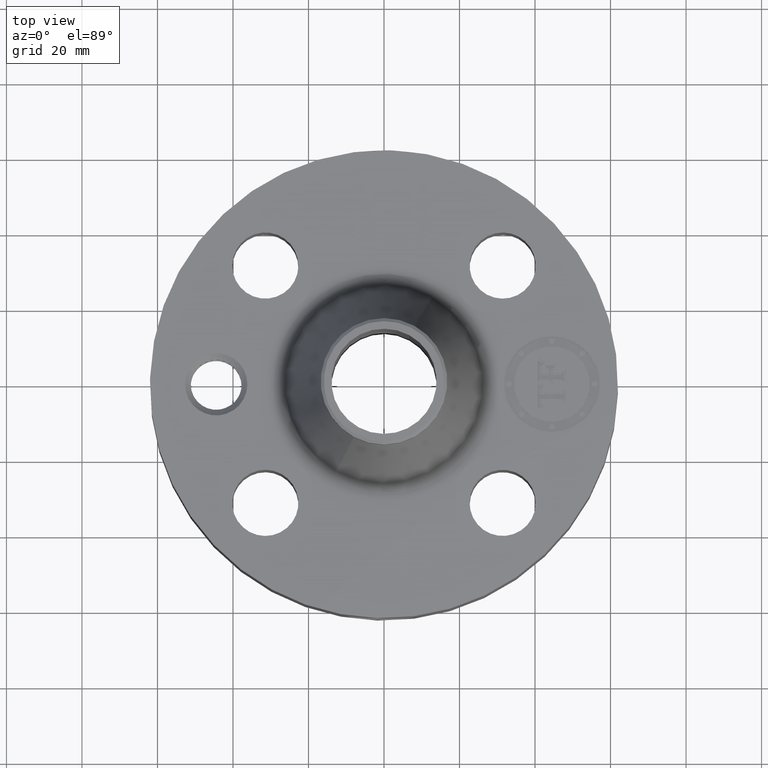
[diagram: clean part render]
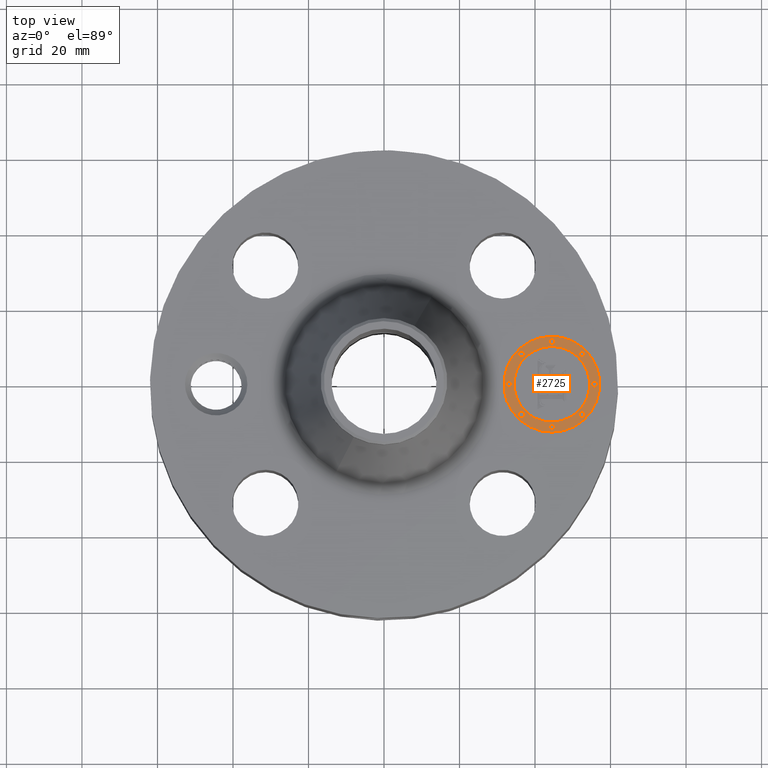
[diagram: same view with one face highlighted and labeled with its STEP entity id]
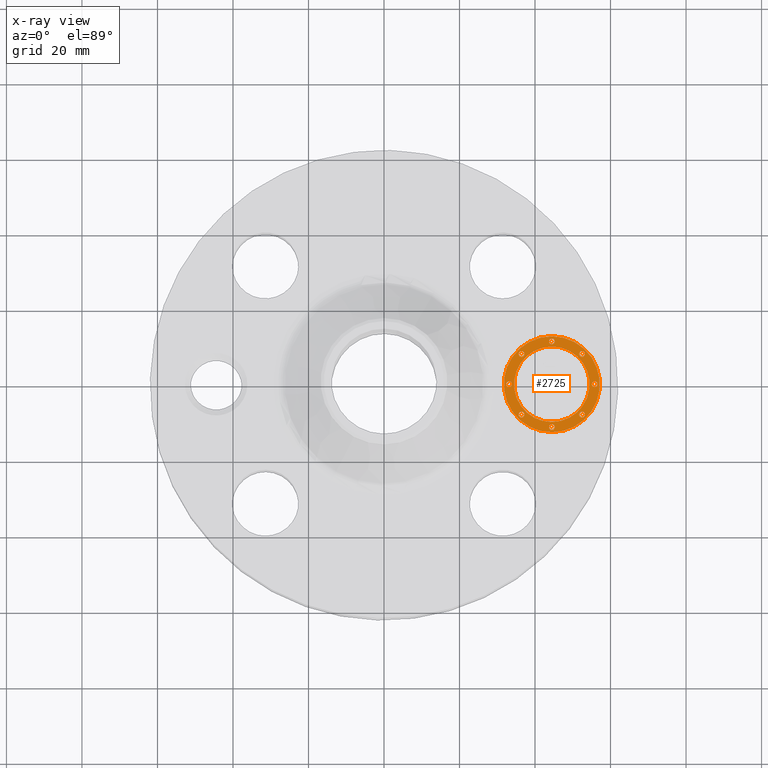
[diagram: x-ray of the same camera — body ghosted, the highlighted face saturated]
A machine part, top view. The second image highlights one B-rep face of the part: STEP entity #2725.
The next image is the same camera in x-ray: the body ghosted, the highlighted face saturated — about 0% of this face is hidden behind the body in this view.
In plain terms, the highlighted planar face has unit normal (0, 0, 1).
Its self-contained STEP definition (entity closure, byte-faithful):
#1886=AXIS2_PLACEMENT_3D('Circle Axis2P3D',#1884,#1885,$) ;
#1913=AXIS2_PLACEMENT_3D('Circle Axis2P3D',#1911,#1912,$) ;
#2557=AXIS2_PLACEMENT_3D('Plane Axis2P3D',#2554,#2555,#2556) ;
#2565=AXIS2_PLACEMENT_3D('Circle Axis2P3D',#2563,#2564,$) ;
#2574=AXIS2_PLACEMENT_3D('Circle Axis2P3D',#2572,#2573,$) ;
#2583=AXIS2_PLACEMENT_3D('Circle Axis2P3D',#2581,#2582,$) ;
#2592=AXIS2_PLACEMENT_3D('Circle Axis2P3D',#2590,#2591,$) ;
#2601=AXIS2_PLACEMENT_3D('Circle Axis2P3D',#2599,#2600,$) ;
#2610=AXIS2_PLACEMENT_3D('Circle Axis2P3D',#2608,#2609,$) ;
#2619=AXIS2_PLACEMENT_3D('Circle Axis2P3D',#2617,#2618,$) ;
#2628=AXIS2_PLACEMENT_3D('Circle Axis2P3D',#2626,#2627,$) ;
#2637=AXIS2_PLACEMENT_3D('Circle Axis2P3D',#2635,#2636,$) ;
#2646=AXIS2_PLACEMENT_3D('Circle Axis2P3D',#2644,#2645,$) ;
#2655=AXIS2_PLACEMENT_3D('Circle Axis2P3D',#2653,#2654,$) ;
#2664=AXIS2_PLACEMENT_3D('Circle Axis2P3D',#2662,#2663,$) ;
#2673=AXIS2_PLACEMENT_3D('Circle Axis2P3D',#2671,#2672,$) ;
#2682=AXIS2_PLACEMENT_3D('Circle Axis2P3D',#2680,#2681,$) ;
#2691=AXIS2_PLACEMENT_3D('Circle Axis2P3D',#2689,#2690,$) ;
#2700=AXIS2_PLACEMENT_3D('Circle Axis2P3D',#2698,#2699,$) ;
#2709=AXIS2_PLACEMENT_3D('Circle Axis2P3D',#2707,#2708,$) ;
#2718=AXIS2_PLACEMENT_3D('Circle Axis2P3D',#2716,#2717,$) ;
#1881=CARTESIAN_POINT('Vertex',(1.75000000001,-0.499999995002,1.54500000001)) ;
#1884=CARTESIAN_POINT('Axis2P3D Location',(1.75000000001,-4.38103225949E-015,1.54500000001)) ;
#1888=CARTESIAN_POINT('Vertex',(1.75000000001,0.499999995002,1.54500000001)) ;
#1911=CARTESIAN_POINT('Axis2P3D Location',(1.75000000001,-4.38103225949E-015,1.54500000001)) ;
#2554=CARTESIAN_POINT('Axis2P3D Location',(0.,0.,1.54500000001)) ;
#2563=CARTESIAN_POINT('Axis2P3D Location',(1.75000000001,-4.38103225949E-015,1.54500000001)) ;
#2567=CARTESIAN_POINT('Vertex',(1.75000000001,-0.393939390002,1.54500000001)) ;
#2569=CARTESIAN_POINT('Vertex',(1.75000000001,0.393939390002,1.54500000001)) ;
#2572=CARTESIAN_POINT('Axis2P3D Location',(1.75000000001,-4.38103225949E-015,1.54500000001)) ;
#2581=CARTESIAN_POINT('Axis2P3D Location',(1.30303030751,-5.65258331292E-015,1.54500000001)) ;
#2585=CARTESIAN_POINT('Vertex',(1.30303030751,-0.0303030300001,1.54500000001)) ;
#2587=CARTESIAN_POINT('Vertex',(1.30303030751,0.0303030300001,1.54500000001)) ;
#2590=CARTESIAN_POINT('Axis2P3D Location',(1.30303030751,-5.65258331292E-015,1.54500000001)) ;
#2599=CARTESIAN_POINT('Axis2P3D Location',(1.75000000001,0.446969692502,1.54500000001)) ;
#2603=CARTESIAN_POINT('Vertex',(1.75000000001,0.416666662502,1.54500000001)) ;
#2605=CARTESIAN_POINT('Vertex',(1.75000000001,0.477272722502,1.54500000001)) ;
#2608=CARTESIAN_POINT('Axis2P3D Location',(1.75000000001,0.446969692502,1.54500000001)) ;
#2617=CARTESIAN_POINT('Axis2P3D Location',(1.43394469945,0.316055300553,1.54500000001)) ;
#2621=CARTESIAN_POINT('Vertex',(1.43394469945,0.285752270553,1.54500000001)) ;
#2623=CARTESIAN_POINT('Vertex',(1.43394469945,0.346358330553,1.54500000001)) ;
#2626=CARTESIAN_POINT('Axis2P3D Location',(1.43394469945,0.316055300553,1.54500000001)) ;
#2635=CARTESIAN_POINT('Axis2P3D Location',(2.19696969251,7.34549412211E-015,1.54500000001)) ;
#2639=CARTESIAN_POINT('Vertex',(2.19696969251,-0.0303030300001,1.54500000001)) ;
#2641=CARTESIAN_POINT('Vertex',(2.19696969251,0.0303030300001,1.54500000001)) ;
#2644=CARTESIAN_POINT('Axis2P3D Location',(2.19696969251,7.34549412211E-015,1.54500000001)) ;
#2653=CARTESIAN_POINT('Axis2P3D Location',(2.06605530056,0.316055300553,1.54500000001)) ;
#2657=CARTESIAN_POINT('Vertex',(2.06605530056,0.285752270553,1.54500000001)) ;
#2659=CARTESIAN_POINT('Vertex',(2.06605530056,0.346358330553,1.54500000001)) ;
#2662=CARTESIAN_POINT('Axis2P3D Location',(2.06605530056,0.316055300553,1.54500000001)) ;
#2671=CARTESIAN_POINT('Axis2P3D Location',(1.75000000001,-0.446969692502,1.54500000001)) ;
#2675=CARTESIAN_POINT('Vertex',(1.75000000001,-0.416666662502,1.54500000001)) ;
#2677=CARTESIAN_POINT('Vertex',(1.75000000001,-0.477272722502,1.54500000001)) ;
#2680=CARTESIAN_POINT('Axis2P3D Location',(1.75000000001,-0.446969692502,1.54500000001)) ;
#2689=CARTESIAN_POINT('Axis2P3D Location',(1.43394469945,-0.316055300553,1.54500000001)) ;
#2693=CARTESIAN_POINT('Vertex',(1.43394469945,-0.285752270553,1.54500000001)) ;
#2695=CARTESIAN_POINT('Vertex',(1.43394469945,-0.346358330553,1.54500000001)) ;
#2698=CARTESIAN_POINT('Axis2P3D Location',(1.43394469945,-0.316055300553,1.54500000001)) ;
#2707=CARTESIAN_POINT('Axis2P3D Location',(2.06605530056,-0.316055300553,1.54500000001)) ;
#2711=CARTESIAN_POINT('Vertex',(2.06605530056,-0.285752270553,1.54500000001)) ;
#2713=CARTESIAN_POINT('Vertex',(2.06605530056,-0.346358330553,1.54500000001)) ;
#2716=CARTESIAN_POINT('Axis2P3D Location',(2.06605530056,-0.316055300553,1.54500000001)) ;
#1885=DIRECTION('Axis2P3D Direction',(0.,0.,0.0393700787402)) ;
#1912=DIRECTION('Axis2P3D Direction',(0.,0.,0.0393700787402)) ;
#2555=DIRECTION('Axis2P3D Direction',(0.,0.,0.0393700787402)) ;
#2556=DIRECTION('Axis2P3D XDirection',(0.0393700787402,0.,0.)) ;
#2564=DIRECTION('Axis2P3D Direction',(0.,0.,0.0393700787402)) ;
#2573=DIRECTION('Axis2P3D Direction',(0.,0.,0.0393700787402)) ;
#2582=DIRECTION('Axis2P3D Direction',(0.,0.,0.0393700787402)) ;
#2591=DIRECTION('Axis2P3D Direction',(0.,0.,0.0393700787402)) ;
#2600=DIRECTION('Axis2P3D Direction',(0.,0.,0.0393700787402)) ;
#2609=DIRECTION('Axis2P3D Direction',(0.,0.,0.0393700787402)) ;
#2618=DIRECTION('Axis2P3D Direction',(0.,0.,0.0393700787402)) ;
#2627=DIRECTION('Axis2P3D Direction',(0.,0.,0.0393700787402)) ;
#2636=DIRECTION('Axis2P3D Direction',(0.,0.,0.0393700787402)) ;
#2645=DIRECTION('Axis2P3D Direction',(0.,0.,0.0393700787402)) ;
#2654=DIRECTION('Axis2P3D Direction',(0.,0.,0.0393700787402)) ;
#2663=DIRECTION('Axis2P3D Direction',(0.,0.,0.0393700787402)) ;
#2672=DIRECTION('Axis2P3D Direction',(0.,0.,0.0393700787402)) ;
#2681=DIRECTION('Axis2P3D Direction',(0.,0.,0.0393700787402)) ;
#2690=DIRECTION('Axis2P3D Direction',(0.,0.,0.0393700787402)) ;
#2699=DIRECTION('Axis2P3D Direction',(0.,0.,0.0393700787402)) ;
#2708=DIRECTION('Axis2P3D Direction',(0.,0.,0.0393700787402)) ;
#2717=DIRECTION('Axis2P3D Direction',(0.,0.,0.0393700787402)) ;
#2560=ORIENTED_EDGE('',*,*,#1890,.T.) ;
#2561=ORIENTED_EDGE('',*,*,#1915,.T.) ;
#2578=ORIENTED_EDGE('',*,*,#2571,.F.) ;
#2579=ORIENTED_EDGE('',*,*,#2576,.F.) ;
#2596=ORIENTED_EDGE('',*,*,#2589,.F.) ;
#2597=ORIENTED_EDGE('',*,*,#2594,.F.) ;
#2614=ORIENTED_EDGE('',*,*,#2607,.F.) ;
#2615=ORIENTED_EDGE('',*,*,#2612,.F.) ;
#2632=ORIENTED_EDGE('',*,*,#2625,.F.) ;
#2633=ORIENTED_EDGE('',*,*,#2630,.F.) ;
#2650=ORIENTED_EDGE('',*,*,#2643,.F.) ;
#2651=ORIENTED_EDGE('',*,*,#2648,.F.) ;
#2668=ORIENTED_EDGE('',*,*,#2661,.F.) ;
#2669=ORIENTED_EDGE('',*,*,#2666,.F.) ;
#2686=ORIENTED_EDGE('',*,*,#2679,.F.) ;
#2687=ORIENTED_EDGE('',*,*,#2684,.F.) ;
#2704=ORIENTED_EDGE('',*,*,#2697,.F.) ;
#2705=ORIENTED_EDGE('',*,*,#2702,.F.) ;
#2722=ORIENTED_EDGE('',*,*,#2715,.F.) ;
#2723=ORIENTED_EDGE('',*,*,#2720,.F.) ;
#2580=FACE_BOUND('',#2577,.T.) ;
#2598=FACE_BOUND('',#2595,.T.) ;
#2616=FACE_BOUND('',#2613,.T.) ;
#2634=FACE_BOUND('',#2631,.T.) ;
#2652=FACE_BOUND('',#2649,.T.) ;
#2670=FACE_BOUND('',#2667,.T.) ;
#2688=FACE_BOUND('',#2685,.T.) ;
#2706=FACE_BOUND('',#2703,.T.) ;
#2724=FACE_BOUND('',#2721,.T.) ;
#2725=ADVANCED_FACE('PartBody',(#2562,#2580,#2598,#2616,#2634,#2652,#2670,#2688,#2706,#2724),#2558,.T.) ;
#1887=CIRCLE('generated circle',#1886,0.499999995002) ;
#1914=CIRCLE('generated circle',#1913,0.499999995002) ;
#2566=CIRCLE('generated circle',#2565,0.393939390002) ;
#2575=CIRCLE('generated circle',#2574,0.393939390002) ;
#2584=CIRCLE('generated circle',#2583,0.0303030300001) ;
#2593=CIRCLE('generated circle',#2592,0.0303030300001) ;
#2602=CIRCLE('generated circle',#2601,0.0303030300001) ;
#2611=CIRCLE('generated circle',#2610,0.0303030300001) ;
#2620=CIRCLE('generated circle',#2619,0.0303030300001) ;
#2629=CIRCLE('generated circle',#2628,0.0303030300001) ;
#2638=CIRCLE('generated circle',#2637,0.0303030300001) ;
#2647=CIRCLE('generated circle',#2646,0.0303030300001) ;
#2656=CIRCLE('generated circle',#2655,0.0303030300001) ;
#2665=CIRCLE('generated circle',#2664,0.0303030300001) ;
#2674=CIRCLE('generated circle',#2673,0.0303030300001) ;
#2683=CIRCLE('generated circle',#2682,0.0303030300001) ;
#2692=CIRCLE('generated circle',#2691,0.0303030300001) ;
#2701=CIRCLE('generated circle',#2700,0.0303030300001) ;
#2710=CIRCLE('generated circle',#2709,0.0303030300001) ;
#2719=CIRCLE('generated circle',#2718,0.0303030300001) ;
#1890=EDGE_CURVE('',#1889,#1882,#1887,.T.) ;
#1915=EDGE_CURVE('',#1882,#1889,#1914,.T.) ;
#2571=EDGE_CURVE('',#2568,#2570,#2566,.T.) ;
#2576=EDGE_CURVE('',#2570,#2568,#2575,.T.) ;
#2589=EDGE_CURVE('',#2586,#2588,#2584,.T.) ;
#2594=EDGE_CURVE('',#2588,#2586,#2593,.T.) ;
#2607=EDGE_CURVE('',#2604,#2606,#2602,.T.) ;
#2612=EDGE_CURVE('',#2606,#2604,#2611,.T.) ;
#2625=EDGE_CURVE('',#2622,#2624,#2620,.T.) ;
#2630=EDGE_CURVE('',#2624,#2622,#2629,.T.) ;
#2643=EDGE_CURVE('',#2640,#2642,#2638,.T.) ;
#2648=EDGE_CURVE('',#2642,#2640,#2647,.T.) ;
#2661=EDGE_CURVE('',#2658,#2660,#2656,.T.) ;
#2666=EDGE_CURVE('',#2660,#2658,#2665,.T.) ;
#2679=EDGE_CURVE('',#2676,#2678,#2674,.T.) ;
#2684=EDGE_CURVE('',#2678,#2676,#2683,.T.) ;
#2697=EDGE_CURVE('',#2694,#2696,#2692,.T.) ;
#2702=EDGE_CURVE('',#2696,#2694,#2701,.T.) ;
#2715=EDGE_CURVE('',#2712,#2714,#2710,.T.) ;
#2720=EDGE_CURVE('',#2714,#2712,#2719,.T.) ;
#2559=EDGE_LOOP('',(#2560,#2561)) ;
#2577=EDGE_LOOP('',(#2578,#2579)) ;
#2595=EDGE_LOOP('',(#2596,#2597)) ;
#2613=EDGE_LOOP('',(#2614,#2615)) ;
#2631=EDGE_LOOP('',(#2632,#2633)) ;
#2649=EDGE_LOOP('',(#2650,#2651)) ;
#2667=EDGE_LOOP('',(#2668,#2669)) ;
#2685=EDGE_LOOP('',(#2686,#2687)) ;
#2703=EDGE_LOOP('',(#2704,#2705)) ;
#2721=EDGE_LOOP('',(#2722,#2723)) ;
#2562=FACE_OUTER_BOUND('',#2559,.T.) ;
#2558=PLANE('',#2557) ;
#1882=VERTEX_POINT('',#1881) ;
#1889=VERTEX_POINT('',#1888) ;
#2568=VERTEX_POINT('',#2567) ;
#2570=VERTEX_POINT('',#2569) ;
#2586=VERTEX_POINT('',#2585) ;
#2588=VERTEX_POINT('',#2587) ;
#2604=VERTEX_POINT('',#2603) ;
#2606=VERTEX_POINT('',#2605) ;
#2622=VERTEX_POINT('',#2621) ;
#2624=VERTEX_POINT('',#2623) ;
#2640=VERTEX_POINT('',#2639) ;
#2642=VERTEX_POINT('',#2641) ;
#2658=VERTEX_POINT('',#2657) ;
#2660=VERTEX_POINT('',#2659) ;
#2676=VERTEX_POINT('',#2675) ;
#2678=VERTEX_POINT('',#2677) ;
#2694=VERTEX_POINT('',#2693) ;
#2696=VERTEX_POINT('',#2695) ;
#2712=VERTEX_POINT('',#2711) ;
#2714=VERTEX_POINT('',#2713) ;